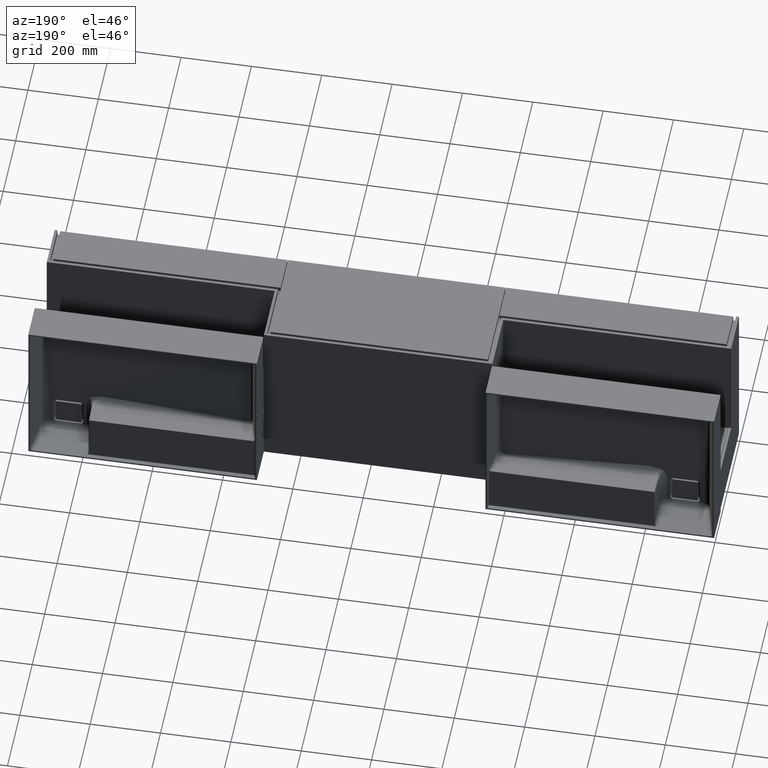
[diagram: clean part render]
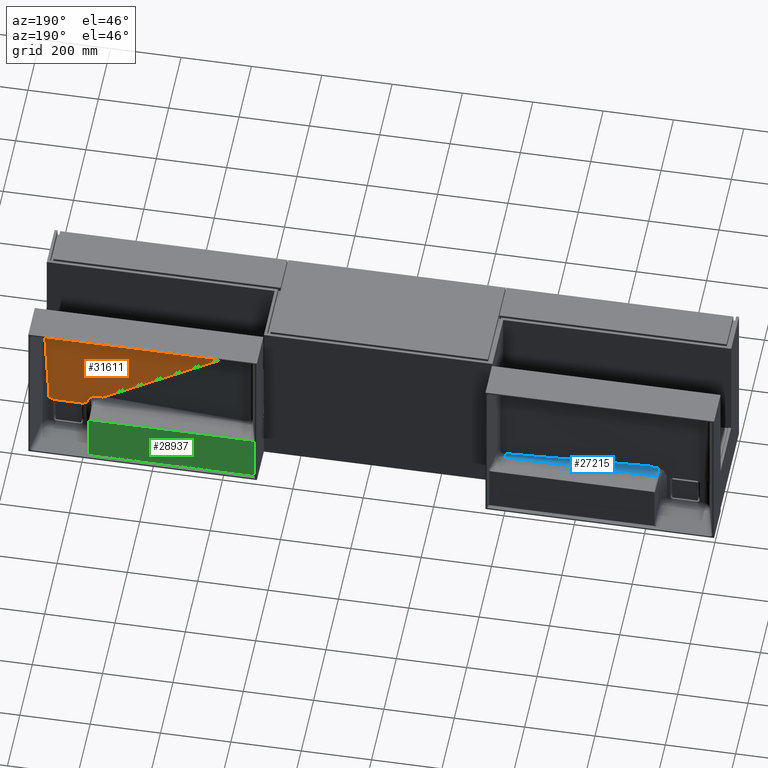
[diagram: same view with three faces highlighted in distinct colors, each labeled with its STEP entity id]
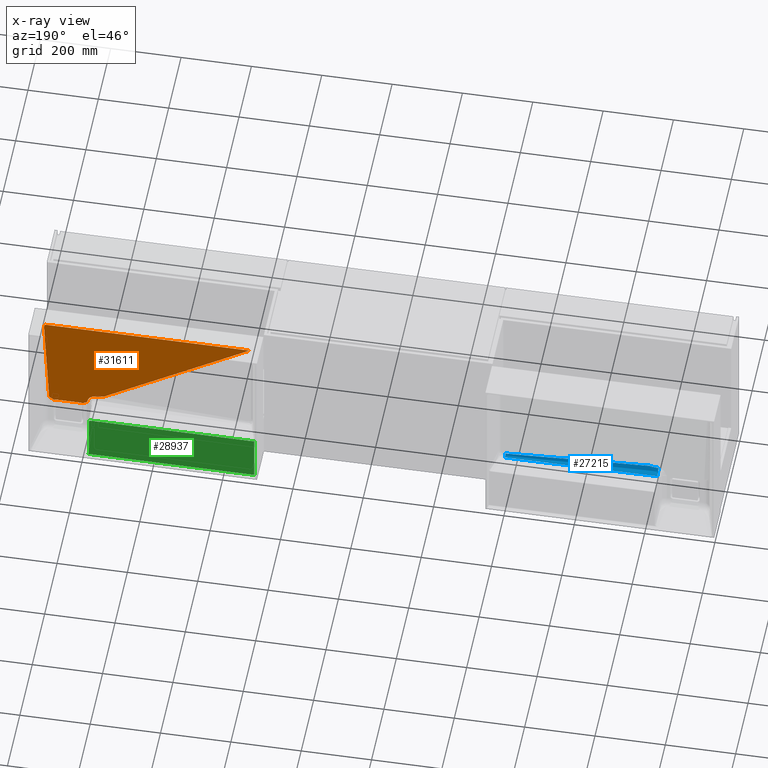
[diagram: x-ray of the same camera — body ghosted, the three highlighted faces saturated]
A machine part, auxiliary view with three faces highlighted in distinct colors.
The next image is the same camera in x-ray (body ghosted, the three faces saturated) — at least one of them is partly hidden behind the body in this view.
Their STEP definitions:

[orange] entity #31611 — the highlighted planar face has unit normal (0, 0.9989, -0.0471).
#67 = EDGE_CURVE ( 'NONE', #32546, #10906, #11994, .T. ) ;
#165 = LINE ( 'NONE', #11169, #16728 ) ;
#211 = VERTEX_POINT ( 'NONE', #19168 ) ;
#622 = VERTEX_POINT ( 'NONE', #16866 ) ;
#641 = ORIENTED_EDGE ( 'NONE', *, *, #14257, .F. ) ;
#1259 = CARTESIAN_POINT ( 'NONE',  ( 1797.965027117435511, 323.4823376982270702, -333.2614559269432561 ) ) ;
#1333 = CARTESIAN_POINT ( 'NONE',  ( 1918.553761002523288, 337.2258089461175814, -41.52988154324056325 ) ) ;
#1390 = DIRECTION ( 'NONE',  ( 1.000000000000000000, 9.757946722184971901E-18, 2.071311613106639097E-16 ) ) ;
#1513 = CARTESIAN_POINT ( 'NONE',  ( 1918.400390947017058, 337.4206142604697334, -37.39476458266908310 ) ) ;
#1569 = CARTESIAN_POINT ( 'NONE',  ( 1780.918442973028732, 324.5750153250745029, -310.0710985464254463 ) ) ;
#1690 = CARTESIAN_POINT ( 'NONE',  ( 1915.666179327739428, 337.6731070166441100, -32.03512086889173816 ) ) ;
#1742 = CARTESIAN_POINT ( 'NONE',  ( 1788.978954743254917, 324.3573774372000003, -314.6875672777780437 ) ) ;
#1772 = CARTESIAN_POINT ( 'NONE',  ( 1758.940962444132083, 324.7265386575339789, -306.8509008232539941 ) ) ;
#1833 = CARTESIAN_POINT ( 'NONE',  ( 1889.112828828983766, 323.0000000000000000, -343.5000000000000000 ) ) ;
#1866 = CARTESIAN_POINT ( 'NONE',  ( 1909.889861883324329, 337.7236905790331321, -30.96138760110958543 ) ) ;
#1921 = CARTESIAN_POINT ( 'NONE',  ( 1793.808610766313677, 324.0734895415783399, -320.7134792406052384 ) ) ;
#1963 = CARTESIAN_POINT ( 'NONE',  ( 1813.866617577748457, 323.0000000000000000, -343.5000000000000000 ) ) ;
#1972 = B_SPLINE_CURVE_WITH_KNOTS ( 'NONE', 3,
 ( #1963, #12992, #23983, #34841, #10290, #21272, #32195, #7583, #18582, #29535, #4850, #15871, #26857, #2159, #13177, #24158 ),
 .UNSPECIFIED., .F., .F.,
 ( 4, 3, 3, 3, 3, 4 ),
 ( 4.440892098536545957E-16, 2.064564616517910577E-05, 4.149602404042847205E-05, 5.110267541765995173E-05, 5.902155138523754716E-05, 6.117800785057030783E-05 ),
 .UNSPECIFIED. ) ;
#1978 = ORIENTED_EDGE ( 'NONE', *, *, #26020, .F. ) ;
#2043 = ORIENTED_EDGE ( 'NONE', *, *, #15710, .F. ) ;
#2090 = CARTESIAN_POINT ( 'NONE',  ( 1907.251403875330880, 337.7249613011945257, -30.93441408255048941 ) ) ;
#2159 = CARTESIAN_POINT ( 'NONE',  ( 1813.921441467915201, 322.9991799397764112, -343.5174073533389674 ) ) ;
#2348 = CARTESIAN_POINT ( 'NONE',  ( 1906.493781632526861, 323.7242482487426969, -328.1264398535575424 ) ) ;
#2397 = EDGE_CURVE ( 'NONE', #20218, #19894, #24029, .T. ) ;
#3324 = VERTEX_POINT ( 'NONE', #20222 ) ;
#3400 = LINE ( 'NONE', #14430, #9749 ) ;
#3428 = CARTESIAN_POINT ( 'NONE',  ( 1815.188754413475408, 323.0293517532739429, -342.8769526607154603 ) ) ;
#3874 = B_SPLINE_CURVE_WITH_KNOTS ( 'NONE', 3,
 ( #6772, #17767, #28732, #4034, #15060, #26028, #1333, #12357, #23336, #34216, #9659, #20644, #31576, #6945, #17941, #28903, #4211, #15235, #26214, #1513, #12541, #23517, #34391, #9826, #20817, #31745, #7120, #18128, #29079, #4391, #15417, #26392, #1690, #12713, #23694, #34562, #10000, #20993, #31925, #7304, #18304, #29256, #4572, #15597, #26567, #1866, #12889, #23877, #34747, #10188, #21176, #32102, #7487, #18484, #29435, #4748, #15772, #26750 ),
 .UNSPECIFIED., .F., .F.,
 ( 4, 2, 2, 2, 2, 2, 2, 2, 2, 2, 2, 2, 2, 2, 2, 2, 2, 2, 2, 2, 2, 2, 2, 2, 2, 2, 2, 2, 4 ),
 ( 0.0000000000000000000, 0.03124999999999999653, 0.04687500000000000000, 0.05468750000000000694, 0.05859375000000000694, 0.06250000000000001388, 0.1250000000000000000, 0.1875000000000000000, 0.2031249999999999445, 0.2187499999999999445, 0.2499999999999999722, 0.3749999999999999445, 0.4375000000000000000, 0.5000000000000000000, 0.5312499999999998890, 0.5624999999999998890, 0.6250000000000000000, 0.7500000000000000000, 0.7812500000000000000, 0.7890625000000000000, 0.7968750000000000000, 0.8125000000000001110, 0.8750000000000001110, 0.9062500000000001110, 0.9218750000000001110, 0.9257812500000001110, 0.9296875000000001110, 0.9375000000000001110, 1.000000000000000000 ),
 .UNSPECIFIED. ) ;
#3962 = CARTESIAN_POINT ( 'NONE',  ( 1797.008663322176517, 323.6403621081881852, -329.9070843073126866 ) ) ;
#3995 = CARTESIAN_POINT ( 'NONE',  ( 1755.770955481895498, 324.7556448546311572, -306.2330658854567105 ) ) ;
#4034 = CARTESIAN_POINT ( 'NONE',  ( 1918.551297990498369, 337.2129434898501472, -41.80297556325307085 ) ) ;
#4134 = CARTESIAN_POINT ( 'NONE',  ( 1800.008530013785503, 323.3087644759445425, -336.9458809527554877 ) ) ;
#4211 = CARTESIAN_POINT ( 'NONE',  ( 1918.471460826505336, 337.3843240377236725, -38.16509426324731891 ) ) ;
#4266 = CARTESIAN_POINT ( 'NONE',  ( 1777.251593850089648, 324.6169723333507022, -309.1766564985796890 ) ) ;
#4315 = DIRECTION ( 'NONE',  ( 1.000000000000000000, 0.0000000000000000000, 0.0000000000000000000 ) ) ;
#4391 = CARTESIAN_POINT ( 'NONE',  ( 1916.468187275119817, 337.6493383360464122, -32.53965676718822664 ) ) ;
#4450 = CARTESIAN_POINT ( 'NONE',  ( 1787.648978590895013, 324.4094675208264675, -313.5844513033470093 ) ) ;
#4540 = CARTESIAN_POINT ( 'NONE',  ( 1889.093363235322386, 322.9999518831746741, -343.5010213720366323 ) ) ;
#4566 = ORIENTED_EDGE ( 'NONE', *, *, #10672, .F. ) ;
#4572 = CARTESIAN_POINT ( 'NONE',  ( 1911.664086501781640, 337.7185813288039640, -31.06984125058045265 ) ) ;
#4624 = CARTESIAN_POINT ( 'NONE',  ( 1793.340956510868637, 324.1112409608070379, -319.9136218570250207 ) ) ;
#4748 = CARTESIAN_POINT ( 'NONE',  ( 1908.283314213188987, 337.7249223621574856, -30.93524063840082761 ) ) ;
#4774 = ORIENTED_EDGE ( 'NONE', *, *, #2397, .F. ) ;
#4808 = CARTESIAN_POINT ( 'NONE',  ( 1796.100611941182024, 323.8190134302277556, -326.1220991987824505 ) ) ;
#4850 = CARTESIAN_POINT ( 'NONE',  ( 1813.917758170202887, 322.9994056883926419, -343.5126154053626237 ) ) ;
#5705 = VERTEX_POINT ( 'NONE', #23726 ) ;
#5755 = ORIENTED_EDGE ( 'NONE', *, *, #24174, .F. ) ;
#6733 = CARTESIAN_POINT ( 'NONE',  ( 1753.156628572261297, 324.7865976977785749, -305.5760323383931905 ) ) ;
#6765 = B_SPLINE_CURVE_WITH_KNOTS ( 'NONE', 3,
 ( #2090, #13114, #24097, #34951, #10406, #21391, #32306 ),
 .UNSPECIFIED., .F., .F.,
 ( 4, 3, 4 ),
 ( -0.8152679471926076449, -0.2530516495166379443, -0.2507651394412833135 ),
 .UNSPECIFIED. ) ;
#6772 = CARTESIAN_POINT ( 'NONE',  ( 1918.541935883497217, 337.1756495435058696, -42.59461120506247056 ) ) ;
#6868 = CARTESIAN_POINT ( 'NONE',  ( 1799.444607723056833, 323.3341654020621831, -336.4066975082351405 ) ) ;
#6945 = CARTESIAN_POINT ( 'NONE',  ( 1918.533830340404620, 337.3336383377531433, -39.24099559737625498 ) ) ;
#7120 = CARTESIAN_POINT ( 'NONE',  ( 1917.078344176790324, 337.6204264664447692, -33.15336673064378203 ) ) ;
#7174 = CARTESIAN_POINT ( 'NONE',  ( 1784.468725406181420, 324.5060581158200534, -311.5310237991028544 ) ) ;
#7273 = CARTESIAN_POINT ( 'NONE',  ( 1889.072487413950512, 322.9997182540301992, -343.5059805993603277 ) ) ;
#7304 = CARTESIAN_POINT ( 'NONE',  ( 1911.981854181594144, 337.7170292202966380, -31.10278773479060277 ) ) ;
#7363 = CARTESIAN_POINT ( 'NONE',  ( 1791.354880991117170, 324.2443063488063899, -317.0916163643000800 ) ) ;
#7388 = VECTOR ( 'NONE', #4315, 1000.000000000000000 ) ;
#7394 = CARTESIAN_POINT ( 'NONE',  ( 1776.018727805431581, 324.6229568114037534, -309.0496244574870843 ) ) ;
#7487 = CARTESIAN_POINT ( 'NONE',  ( 1908.800554331208104, 337.7247032677150287, -30.93989133876175757 ) ) ;
#7540 = CARTESIAN_POINT ( 'NONE',  ( 1794.096907442260090, 324.0485024675449495, -321.2435212629389412 ) ) ;
#7583 = CARTESIAN_POINT ( 'NONE',  ( 1813.910322701778341, 322.9996506961234104, -343.5074146456904600 ) ) ;
#7781 = CARTESIAN_POINT ( 'NONE',  ( 1906.410967357060827, 323.4151811651100843, -334.6869823302012037 ) ) ;
#7846 = CARTESIAN_POINT ( 'NONE',  ( 1335.598309511666457, 337.6956620656200698, -31.55634663279194996 ) ) ;
#8536 = ORIENTED_EDGE ( 'NONE', *, *, #21238, .F. ) ;
#8859 = CARTESIAN_POINT ( 'NONE',  ( 1907.251403875330880, 337.7249613011945257, -30.93441408255048941 ) ) ;
#8951 = VERTEX_POINT ( 'NONE', #23793 ) ;
#9380 = CARTESIAN_POINT ( 'NONE',  ( 1002.726605056209110, 323.0000000000000000, -343.5000000000000000 ) ) ;
#9433 = CARTESIAN_POINT ( 'NONE',  ( 1751.635324151836357, 324.8115746191029984, -305.0458492099913315 ) ) ;
#9578 = CARTESIAN_POINT ( 'NONE',  ( 1798.832162064819840, 323.3810258314262001, -335.4119948899470955 ) ) ;
#9616 = VERTEX_POINT ( 'NONE', #27597 ) ;
#9659 = CARTESIAN_POINT ( 'NONE',  ( 1918.555222908076303, 337.2356290460759283, -41.32143106011609746 ) ) ;
#9749 = VECTOR ( 'NONE', #25406, 1000.000000000000114 ) ;
#9826 = CARTESIAN_POINT ( 'NONE',  ( 1917.661909477306835, 337.5703446206647413, -34.21645009974789531 ) ) ;
#9880 = CARTESIAN_POINT ( 'NONE',  ( 1782.715109627339643, 324.5430820644769483, -310.7455398828510624 ) ) ;
#9970 = CARTESIAN_POINT ( 'NONE',  ( 1889.062860614791816, 322.9994480009252129, -343.5117172405886095 ) ) ;
#10000 = CARTESIAN_POINT ( 'NONE',  ( 1912.445969025394334, 337.7144185549785789, -31.15820412048111265 ) ) ;
#10008 = CARTESIAN_POINT ( 'NONE',  ( 1887.790691993257042, 323.0293517532739429, -342.8769526607154603 ) ) ;
#10058 = CARTESIAN_POINT ( 'NONE',  ( 1789.499671415799185, 324.3348375182867471, -315.1655142757637691 ) ) ;
#10091 = CARTESIAN_POINT ( 'NONE',  ( 1767.458447236063648, 324.6680791695544031, -308.0918157390205465 ) ) ;
#10188 = CARTESIAN_POINT ( 'NONE',  ( 1908.920016622152843, 337.7246380692217258, -30.94127530200776377 ) ) ;
#10245 = CARTESIAN_POINT ( 'NONE',  ( 1794.070620760738848, 324.0508386337016873, -321.1939358508398641 ) ) ;
#10290 = CARTESIAN_POINT ( 'NONE',  ( 1813.894094666420415, 322.9999044965674102, -343.5020272437902236 ) ) ;
#10338 = DIRECTION ( 'NONE',  ( 1.000000000000000000, 0.0000000000000000000, 0.0000000000000000000 ) ) ;
#10370 = VERTEX_POINT ( 'NONE', #30708 ) ;
#10406 = CARTESIAN_POINT ( 'NONE',  ( 1344.272936174369761, 337.7249613011944689, -30.93441408255059599 ) ) ;
#10456 = EDGE_CURVE ( 'NONE', #31799, #21477, #3874, .T. ) ;
#10544 = CARTESIAN_POINT ( 'NONE',  ( 1337.699105935312446, 337.7158296425627100, -31.12825107623095988 ) ) ;
#10664 = CARTESIAN_POINT ( 'NONE',  ( 1918.541935883497217, 337.1756495435058696, -42.59461120506247056 ) ) ;
#10672 = EDGE_CURVE ( 'NONE', #10906, #10370, #27957, .T. ) ;
#10722 = CARTESIAN_POINT ( 'NONE',  ( 1335.384846475662926, 337.6820198651378746, -31.84592854066115564 ) ) ;
#10906 = VERTEX_POINT ( 'NONE', #25379 ) ;
#11169 = CARTESIAN_POINT ( 'NONE',  ( 1743.016040398503719, 325.0718058132474653, -299.5219422870509902 ) ) ;
#11386 = B_SPLINE_CURVE_WITH_KNOTS ( 'NONE', 3,
 ( #17696, #28659, #3962, #14986, #25956, #1259, #12285, #23260, #34141, #9578, #20570, #31501, #6868, #17866, #28829, #4134 ),
 .UNSPECIFIED., .F., .F.,
 ( 4, 2, 2, 2, 2, 2, 2, 4 ),
 ( 0.0000000000000000000, 0.002327619205669986639, 0.004655238411339973278, 0.005819048014175066778, 0.006982857617010161146, 0.008146667219845256380, 0.008728572021262873820, 0.009310476822680489525 ),
 .UNSPECIFIED. ) ;
#11939 = EDGE_LOOP ( 'NONE', ( #21518, #29605, #2043, #12883, #4566, #23687, #26207, #8536, #5755, #30787, #21389, #28474, #4774, #1978, #12823, #17131, #14260, #641 ) ) ;
#11994 = LINE ( 'NONE', #22964, #19259 ) ;
#12144 = CARTESIAN_POINT ( 'NONE',  ( 1750.672703907352570, 324.8349497930412895, -304.5496662463542634 ) ) ;
#12285 = CARTESIAN_POINT ( 'NONE',  ( 1798.090650588392919, 323.4650869982648373, -333.6276351671359635 ) ) ;
#12357 = CARTESIAN_POINT ( 'NONE',  ( 1918.554232795710732, 337.2287208398669236, -41.46807100552397429 ) ) ;
#12541 = CARTESIAN_POINT ( 'NONE',  ( 1918.371306749212408, 337.4320743959908668, -37.15150119470121126 ) ) ;
#12595 = CARTESIAN_POINT ( 'NONE',  ( 1781.820419394163537, 324.5598665957712683, -310.3908971778910200 ) ) ;
#12682 = CARTESIAN_POINT ( 'NONE',  ( 1889.057311611760269, 322.9991196170648777, -343.5186878187532784 ) ) ;
#12713 = CARTESIAN_POINT ( 'NONE',  ( 1914.683035242808501, 337.6928821471071274, -31.61535574263310622 ) ) ;
#12767 = CARTESIAN_POINT ( 'NONE',  ( 1789.154589835223078, 324.3499665057816514, -314.8446081194318253 ) ) ;
#12797 = CARTESIAN_POINT ( 'NONE',  ( 1761.064008319415507, 324.7100343581348625, -307.2012362778858687 ) ) ;
#12814 = VECTOR ( 'NONE', #10338, 1000.000000000000000 ) ;
#12823 = ORIENTED_EDGE ( 'NONE', *, *, #31941, .F. ) ;
#12883 = ORIENTED_EDGE ( 'NONE', *, *, #32866, .F. ) ;
#12889 = CARTESIAN_POINT ( 'NONE',  ( 1909.630033744161892, 337.7240417001082164, -30.95393438188889945 ) ) ;
#12946 = CARTESIAN_POINT ( 'NONE',  ( 1793.920223284073245, 324.0639702423433732, -320.9153348663550673 ) ) ;
#12992 = CARTESIAN_POINT ( 'NONE',  ( 1813.873499459803952, 323.0000000000000000, -343.5000000000000000 ) ) ;
#13114 = CARTESIAN_POINT ( 'NONE',  ( 1719.845971316801297, 337.7249613011945257, -30.93441408255059955 ) ) ;
#13177 = CARTESIAN_POINT ( 'NONE',  ( 1813.921805009517129, 322.9991501576077439, -343.5180395370724113 ) ) ;
#13260 = CARTESIAN_POINT ( 'NONE',  ( 1342.748596124134110, 337.7249613011945257, -30.93441408255059955 ) ) ;
#13305 = CARTESIAN_POINT ( 'NONE',  ( 1813.922134794972635, 322.9991196170648777, -343.5186878187532784 ) ) ;
#13378 = CARTESIAN_POINT ( 'NONE',  ( 1906.535188770260220, 323.8787817905590032, -324.8461686152356265 ) ) ;
#13433 = CARTESIAN_POINT ( 'NONE',  ( 1335.269267041137482, 337.6904979936179529, -31.66596397969345844 ) ) ;
#14257 = EDGE_CURVE ( 'NONE', #622, #35167, #1972, .T. ) ;
#14260 = ORIENTED_EDGE ( 'NONE', *, *, #28502, .F. ) ;
#14430 = CARTESIAN_POINT ( 'NONE',  ( 1640.719486562615657, 315.1961146394702951, -509.1524557350588793 ) ) ;
#14460 = CARTESIAN_POINT ( 'NONE',  ( 1816.569811490956454, 323.0448930965661702, -342.5470577990108723 ) ) ;
#14986 = CARTESIAN_POINT ( 'NONE',  ( 1797.398162651793427, 323.5696781237312507, -331.4074876404578731 ) ) ;
#15019 = CARTESIAN_POINT ( 'NONE',  ( 1756.297888460271906, 324.7503751772955525, -306.3449249084019357 ) ) ;
#15060 = CARTESIAN_POINT ( 'NONE',  ( 1918.552237406985796, 337.2174715863224606, -41.70685801849049312 ) ) ;
#15116 = LINE ( 'NONE', #26087, #21476 ) ;
#15235 = CARTESIAN_POINT ( 'NONE',  ( 1918.449992683475784, 337.3966834261214558, -37.90274250577006399 ) ) ;
#15291 = CARTESIAN_POINT ( 'NONE',  ( 1778.483304739420646, 324.6067101696027066, -309.3991760769907842 ) ) ;
#15417 = CARTESIAN_POINT ( 'NONE',  ( 1916.347413918042321, 337.6536268302083386, -32.44862524167150752 ) ) ;
#15474 = CARTESIAN_POINT ( 'NONE',  ( 1788.383704467648840, 324.3815675999406380, -314.1752336002058996 ) ) ;
#15562 = CARTESIAN_POINT ( 'NONE',  ( 1889.099816841022403, 322.9999873542473097, -343.5002684303901788 ) ) ;
#15597 = CARTESIAN_POINT ( 'NONE',  ( 1911.116366238793034, 337.7209145105940138, -31.02031498573701285 ) ) ;
#15650 = CARTESIAN_POINT ( 'NONE',  ( 1793.501089305568939, 324.0987252844670934, -320.1786996566458470 ) ) ;
#15710 = EDGE_CURVE ( 'NONE', #35274, #20384, #11386, .T. ) ;
#15751 = EDGE_CURVE ( 'NONE', #3324, #622, #18048, .T. ) ;
#15772 = CARTESIAN_POINT ( 'NONE',  ( 1907.811716452081782, 337.7249613012529608, -30.93441408131116788 ) ) ;
#15826 = CARTESIAN_POINT ( 'NONE',  ( 1796.414138589793083, 323.7638814780939356, -327.2851484368540014 ) ) ;
#15871 = CARTESIAN_POINT ( 'NONE',  ( 1813.919620097178267, 322.9993131088632481, -343.5145805836913269 ) ) ;
#16080 = CARTESIAN_POINT ( 'NONE',  ( 1800.008530013785503, 323.3087644759445425, -336.9458809527554877 ) ) ;
#16728 = VECTOR ( 'NONE', #22156, 1000.000000000000114 ) ;
#16866 = CARTESIAN_POINT ( 'NONE',  ( 1813.866617577748457, 323.0000000000000000, -343.5000000000000000 ) ) ;
#17131 = ORIENTED_EDGE ( 'NONE', *, *, #26931, .F. ) ;
#17696 = CARTESIAN_POINT ( 'NONE',  ( 1796.661314733863037, 323.7115601592880125, -328.3957689223036027 ) ) ;
#17728 = CARTESIAN_POINT ( 'NONE',  ( 1754.195135619316716, 324.7731144977070130, -305.8622391571532830 ) ) ;
#17767 = CARTESIAN_POINT ( 'NONE',  ( 1918.545138887779103, 337.1876033160002635, -42.34086942420800170 ) ) ;
#17866 = CARTESIAN_POINT ( 'NONE',  ( 1799.700847622386618, 323.3203450831404666, -336.7000603220987500 ) ) ;
#17941 = CARTESIAN_POINT ( 'NONE',  ( 1918.513969951351328, 337.3551352547292481, -38.78468224533326492 ) ) ;
#18048 = LINE ( 'NONE', #29001, #7388 ) ;
#18128 = CARTESIAN_POINT ( 'NONE',  ( 1916.794859837091508, 337.6354806959269013, -32.83381179515804149 ) ) ;
#18184 = CARTESIAN_POINT ( 'NONE',  ( 1785.575678376035739, 324.4769567877083318, -312.1526379937471347 ) ) ;
#18236 = VERTEX_POINT ( 'NONE', #30775 ) ;
#18273 = CARTESIAN_POINT ( 'NONE',  ( 1889.079090576085719, 322.9998476346299299, -343.5032342476292797 ) ) ;
#18304 = CARTESIAN_POINT ( 'NONE',  ( 1911.929670964552770, 337.7172985778204293, -31.09707010399200655 ) ) ;
#18360 = CARTESIAN_POINT ( 'NONE',  ( 1792.488825966484001, 324.1728390216620141, -318.6085714211701543 ) ) ;
#18462 = CARTESIAN_POINT ( 'NONE',  ( 1889.057311611760269, 322.9991196170648777, -343.5186878187532784 ) ) ;
#18484 = CARTESIAN_POINT ( 'NONE',  ( 1908.737364945573518, 337.7247344144538488, -30.93923018940682823 ) ) ;
#18538 = CARTESIAN_POINT ( 'NONE',  ( 1794.756526708276851, 323.9896845516999520, -322.4920444985859262 ) ) ;
#18582 = CARTESIAN_POINT ( 'NONE',  ( 1813.913180599642828, 322.9995765522121474, -343.5089884926149466 ) ) ;
#18848 = CARTESIAN_POINT ( 'NONE',  ( 1335.269267041137482, 337.6904979936179529, -31.66596397969345844 ) ) ;
#18942 = EDGE_CURVE ( 'NONE', #19894, #9616, #3400, .T. ) ;
#19168 = CARTESIAN_POINT ( 'NONE',  ( 1335.269267041137482, 337.6904979936179529, -31.66596397969345844 ) ) ;
#19259 = VECTOR ( 'NONE', #33855, 1000.000000000000114 ) ;
#19894 = VERTEX_POINT ( 'NONE', #34908 ) ;
#20218 = VERTEX_POINT ( 'NONE', #31358 ) ;
#20222 = CARTESIAN_POINT ( 'NONE',  ( 1809.989723203366339, 323.0000000000000000, -343.5000000000000000 ) ) ;
#20297 = CARTESIAN_POINT ( 'NONE',  ( 1918.541935883497217, 337.1756495435058696, -42.59461120506247056 ) ) ;
#20375 = DIRECTION ( 'NONE',  ( 0.0000000000000000000, 0.9988921681304054889, -0.04705779901076869581 ) ) ;
#20384 = VERTEX_POINT ( 'NONE', #16080 ) ;
#20413 = B_SPLINE_CURVE_WITH_KNOTS ( 'NONE', 3,
 ( #12682, #23660, #34530, #9970, #20960, #31886, #7273, #18273, #29222, #4540, #15562, #26533, #1833 ),
 .UNSPECIFIED., .F., .F.,
 ( 4, 3, 3, 3, 4 ),
 ( 0.0000000000000000000, 8.915617227922920056E-06, 2.010108594511868696E-05, 4.157102085746201023E-05, 6.097989384569850062E-05 ),
 .UNSPECIFIED. ) ;
#20425 = CARTESIAN_POINT ( 'NONE',  ( 1751.885109507924426, 324.8069209751062658, -305.1446317420964078 ) ) ;
#20570 = CARTESIAN_POINT ( 'NONE',  ( 1799.011281870217545, 323.3646822769985079, -335.7589182238186822 ) ) ;
#20644 = CARTESIAN_POINT ( 'NONE',  ( 1918.558497224494431, 337.2631909068123264, -40.73637762779513594 ) ) ;
#20817 = CARTESIAN_POINT ( 'NONE',  ( 1917.530640076710142, 337.5842716480207173, -33.92082219441735447 ) ) ;
#20871 = CARTESIAN_POINT ( 'NONE',  ( 1783.011339523488459, 324.5370999545092445, -310.8721991501494131 ) ) ;
#20960 = CARTESIAN_POINT ( 'NONE',  ( 1889.065688140488874, 322.9995629513521749, -343.5092771969901264 ) ) ;
#20975 = EDGE_CURVE ( 'NONE', #20384, #3324, #165, .T. ) ;
#20993 = CARTESIAN_POINT ( 'NONE',  ( 1912.123156575955591, 337.7162688819984737, -31.11892737555379540 ) ) ;
#20999 = CARTESIAN_POINT ( 'NONE',  ( 1889.057311611760269, 322.9991196170648777, -343.5186878187532784 ) ) ;
#21051 = CARTESIAN_POINT ( 'NONE',  ( 1789.526960147151158, 324.3336191950053831, -315.1913710976098741 ) ) ;
#21081 = CARTESIAN_POINT ( 'NONE',  ( 1771.735516287872542, 324.6443237527144561, -308.5960700885868278 ) ) ;
#21176 = CARTESIAN_POINT ( 'NONE',  ( 1908.885416681382367, 337.7246580537544105, -30.94085109191881955 ) ) ;
#21229 = CARTESIAN_POINT ( 'NONE',  ( 1794.084094304169184, 324.0496422222772139, -321.2193292840379968 ) ) ;
#21238 = EDGE_CURVE ( 'NONE', #5705, #211, #29618, .T. ) ;
#21272 = CARTESIAN_POINT ( 'NONE',  ( 1813.901013522018047, 322.9998379681751999, -343.5034394366965671 ) ) ;
#21389 = ORIENTED_EDGE ( 'NONE', *, *, #25066, .F. ) ;
#21391 = CARTESIAN_POINT ( 'NONE',  ( 1343.510766149251594, 337.7249613011944120, -30.93441408255059244 ) ) ;
#21476 = VECTOR ( 'NONE', #1390, 1000.000000000000000 ) ;
#21477 = VERTEX_POINT ( 'NONE', #8859 ) ;
#21518 = ORIENTED_EDGE ( 'NONE', *, *, #15751, .F. ) ;
#21533 = CARTESIAN_POINT ( 'NONE',  ( 1336.977750193986139, 337.7111388342803480, -31.22782249167887869 ) ) ;
#21706 = CARTESIAN_POINT ( 'NONE',  ( 1335.426944914187288, 337.6804219453647420, -31.87984745698018685 ) ) ;
#21847 =( BOUNDED_CURVE ( )  B_SPLINE_CURVE ( 3, ( #28141, #3428, #14460, #25440 ),
 .UNSPECIFIED., .F., .T. ) 
 B_SPLINE_CURVE_WITH_KNOTS ( ( 4, 4 ),
 ( 5.814230398886809148, 6.283185307179586232 ),
 .UNSPECIFIED. ) 
 CURVE ( )  GEOMETRIC_REPRESENTATION_ITEM ( )  RATIONAL_B_SPLINE_CURVE ( ( 1.000000000000000000, 0.9817572531261220536, 0.9817572531261220536, 1.000000000000000000 ) ) 
 REPRESENTATION_ITEM ( '' )  );
#22156 = DIRECTION ( 'NONE',  ( 0.8356163984689591873, -0.02584948056443473960, -0.5487048741940557806 ) ) ;
#22964 = CARTESIAN_POINT ( 'NONE',  ( 1743.016040398503719, 325.0718058132474653, -299.5219422870509902 ) ) ;
#23001 =( BOUNDED_CURVE ( )  B_SPLINE_CURVE ( 3, ( #23699, #34567, #10008, #20999 ),
 .UNSPECIFIED., .F., .T. ) 
 B_SPLINE_CURVE_WITH_KNOTS ( ( 4, 4 ),
 ( 0.0000000000000000000, 0.4689549082927774171 ),
 .UNSPECIFIED. ) 
 CURVE ( )  GEOMETRIC_REPRESENTATION_ITEM ( )  RATIONAL_B_SPLINE_CURVE ( ( 1.000000000000000000, 0.9817572531261220536, 0.9817572531261220536, 1.000000000000000000 ) ) 
 REPRESENTATION_ITEM ( '' )  );
#23070 = FACE_OUTER_BOUND ( 'NONE', #11939, .T. ) ;
#23120 = CARTESIAN_POINT ( 'NONE',  ( 1750.903433881881256, 324.8278122476279464, -304.7011743568679663 ) ) ;
#23260 = CARTESIAN_POINT ( 'NONE',  ( 1798.362026851982819, 323.4309747735021574, -334.3517326572268757 ) ) ;
#23336 = CARTESIAN_POINT ( 'NONE',  ( 1918.554546497903630, 337.2307365062807776, -41.42528461437967024 ) ) ;
#23517 = CARTESIAN_POINT ( 'NONE',  ( 1918.207474178610937, 337.4871639428827734, -35.98211975118191219 ) ) ;
#23572 = CARTESIAN_POINT ( 'NONE',  ( 1782.119805633271653, 324.5545047444864508, -310.5040692008880683 ) ) ;
#23660 = CARTESIAN_POINT ( 'NONE',  ( 1889.058657905993414, 322.9992442937479495, -343.5160413166884155 ) ) ;
#23687 = ORIENTED_EDGE ( 'NONE', *, *, #67, .F. ) ;
#23694 = CARTESIAN_POINT ( 'NONE',  ( 1913.886969419783327, 337.7033852451376106, -31.39240731358752257 ) ) ;
#23699 = CARTESIAN_POINT ( 'NONE',  ( 1884.989723203366339, 323.0448930965661702, -342.5470577990108723 ) ) ;
#23726 = CARTESIAN_POINT ( 'NONE',  ( 1342.748596124134110, 337.7249613011945257, -30.93441408255059955 ) ) ;
#23748 = CARTESIAN_POINT ( 'NONE',  ( 1789.356582927754744, 324.3411750285285393, -315.0310454186692937 ) ) ;
#23780 = CARTESIAN_POINT ( 'NONE',  ( 1762.127666965743174, 324.7024201626881563, -307.3628622008577054 ) ) ;
#23793 = CARTESIAN_POINT ( 'NONE',  ( 1884.989723203366339, 323.0448930965661702, -342.5470577990108723 ) ) ;
#23877 = CARTESIAN_POINT ( 'NONE',  ( 1909.228302570850246, 337.7244269008043602, -30.94575775725785149 ) ) ;
#23938 = CARTESIAN_POINT ( 'NONE',  ( 1793.975500944219675, 324.0592029971686543, -321.0164471416222796 ) ) ;
#23983 = CARTESIAN_POINT ( 'NONE',  ( 1813.880402929523143, 322.9999859263438680, -343.5002987403825614 ) ) ;
#24029 = LINE ( 'NONE', #34887, #12814 ) ;
#24097 = CARTESIAN_POINT ( 'NONE',  ( 1532.440538758144612, 337.7249613011945257, -30.93441408255059955 ) ) ;
#24157 = CARTESIAN_POINT ( 'NONE',  ( 1335.472280760403237, 337.6790194979284934, -31.90961709749995379 ) ) ;
#24158 = CARTESIAN_POINT ( 'NONE',  ( 1813.922134794972635, 322.9991196170648777, -343.5186878187532784 ) ) ;
#24174 = EDGE_CURVE ( 'NONE', #21477, #5705, #6765, .T. ) ;
#24240 = CARTESIAN_POINT ( 'NONE',  ( 1341.305884641666353, 337.7249613013771636, -30.93441407867114634 ) ) ;
#24357 = CARTESIAN_POINT ( 'NONE',  ( 1907.723264519358963, 328.3127408494356132, -230.7268712654125693 ) ) ;
#24412 = CARTESIAN_POINT ( 'NONE',  ( 1335.285139764181622, 337.6880379785537798, -31.71818252439109642 ) ) ;
#24539 = B_SPLINE_CURVE_WITH_KNOTS ( 'NONE', 3,
 ( #28954, #4266, #15291, #26270, #1569, #12595, #23572, #34441, #9880, #20871, #31800, #7174, #18184, #29132, #4450, #15474, #26447, #1742, #12767, #23748, #34615, #10058, #21051, #31979, #7363, #18360, #29309, #4624, #15650, #26624, #1921, #12946, #23938, #34799, #10245, #21229, #32150, #7540, #18538, #29489, #4808, #15826, #26809 ),
 .UNSPECIFIED., .F., .F.,
 ( 4, 2, 2, 2, 2, 2, 2, 2, 2, 1, 1, 2, 2, 2, 2, 2, 2, 1, 1, 1, 2, 2, 2, 4 ),
 ( 0.0000000000000000000, 0.1249999999999296119, 0.1874999999999050482, 0.2187499999998936406, 0.2343749999998889499, 0.2499999999998842592, 0.3749999999999152900, 0.4374999999999399369, 0.4687499999999539813, 0.4843749999999525935, 0.4921874999999501510, 0.4960937499999490408, 0.4999999999999479305, 0.6250000000003597123, 0.6875000000005745404, 0.7187500000006796785, 0.7343750000007379652, 0.7421875000007727152, 0.7460937500007925882, 0.7480468750008024692, 0.7490234375008097967, 0.7500000000008171241, 0.8750000000004085621, 1.000000000000000000 ),
 .UNSPECIFIED. ) ;
#25066 = EDGE_CURVE ( 'NONE', #9616, #31799, #34519, .T. ) ;
#25379 = CARTESIAN_POINT ( 'NONE',  ( 1750.672703907352570, 324.8349497930412895, -304.5496662463542634 ) ) ;
#25406 = DIRECTION ( 'NONE',  ( 0.8356163984689579660, 0.02584948056443482980, 0.5487048741940574459 ) ) ;
#25440 = CARTESIAN_POINT ( 'NONE',  ( 1817.989723203366339, 323.0448930965661702, -342.5470577990108723 ) ) ;
#25956 = CARTESIAN_POINT ( 'NONE',  ( 1797.608516856035976, 323.5344834360791992, -332.1545624844752638 ) ) ;
#25991 = CARTESIAN_POINT ( 'NONE',  ( 1757.881509471888648, 324.7354091234105908, -306.6626081474763623 ) ) ;
#26020 = EDGE_CURVE ( 'NONE', #29712, #20218, #20413, .T. ) ;
#26028 = CARTESIAN_POINT ( 'NONE',  ( 1918.553409454663552, 337.2237845743520666, -41.57285272217691841 ) ) ;
#26087 = CARTESIAN_POINT ( 'NONE',  ( 1884.989723203366339, 323.0448930965661702, -342.5470577990108723 ) ) ;
#26207 = ORIENTED_EDGE ( 'NONE', *, *, #31125, .F. ) ;
#26214 = CARTESIAN_POINT ( 'NONE',  ( 1918.438305101559536, 337.4027503104503580, -37.77396123319908838 ) ) ;
#26270 = CARTESIAN_POINT ( 'NONE',  ( 1780.312056362050498, 324.5838626151304425, -309.8841741496217423 ) ) ;
#26392 = CARTESIAN_POINT ( 'NONE',  ( 1915.959179525441641, 337.6658314866651835, -32.18955796683656700 ) ) ;
#26447 = CARTESIAN_POINT ( 'NONE',  ( 1788.624417612935758, 324.3720283612535127, -314.3771978457709224 ) ) ;
#26533 = CARTESIAN_POINT ( 'NONE',  ( 1889.106331352100597, 323.0000000000000000, -343.5000000000000000 ) ) ;
#26567 = CARTESIAN_POINT ( 'NONE',  ( 1910.645136854271414, 337.7222999921850715, -30.99090547786567740 ) ) ;
#26624 = CARTESIAN_POINT ( 'NONE',  ( 1793.732792493560055, 324.0798154879924482, -320.5793987969469185 ) ) ;
#26750 = CARTESIAN_POINT ( 'NONE',  ( 1907.251403875330880, 337.7249613011945257, -30.93441408255048941 ) ) ;
#26809 = CARTESIAN_POINT ( 'NONE',  ( 1796.661314733863037, 323.7115601592880125, -328.3957689223036027 ) ) ;
#26857 = CARTESIAN_POINT ( 'NONE',  ( 1813.921047476732156, 322.9992087463477333, -343.5167958785331166 ) ) ;
#26931 = EDGE_CURVE ( 'NONE', #18236, #8951, #15116, .T. ) ;
#27058 = CARTESIAN_POINT ( 'NONE',  ( 1906.452374494793730, 323.5697147069263337, -331.4067110918794015 ) ) ;
#27597 = CARTESIAN_POINT ( 'NONE',  ( 1906.410967357060827, 323.4151811651100843, -334.6869823302012037 ) ) ;
#27957 = B_SPLINE_CURVE_WITH_KNOTS ( 'NONE', 3,
 ( #12144, #23120, #34007, #9433, #20425, #31363, #6733, #17728, #28692, #3995, #15019, #25991, #1772, #12797, #23780, #34647, #10091, #21081, #32012, #7394 ),
 .UNSPECIFIED., .F., .F.,
 ( 4, 2, 2, 2, 2, 2, 2, 2, 2, 4 ),
 ( 0.0000000000000000000, 0.0008055719474764946571, 0.001611143894952989314, 0.003222287789905352393, 0.004833431684857715689, 0.006444575579810078551, 0.009666863369714806878, 0.01288915115961953607, 0.01933372673942901354, 0.02577830231923849275 ),
 .UNSPECIFIED. ) ;
#28141 = CARTESIAN_POINT ( 'NONE',  ( 1813.922134794972635, 322.9991196170648777, -343.5186878187532784 ) ) ;
#28474 = ORIENTED_EDGE ( 'NONE', *, *, #18942, .F. ) ;
#28489 = B_SPLINE_CURVE_WITH_KNOTS ( 'NONE', 3,
 ( #13433, #24412, #35258, #10722, #21706, #32611 ),
 .UNSPECIFIED., .F., .F.,
 ( 4, 2, 4 ),
 ( 0.0000000000000000000, 0.0001612486844205109461, 0.0003224973688410218923 ),
 .UNSPECIFIED. ) ;
#28502 = EDGE_CURVE ( 'NONE', #35167, #18236, #21847, .T. ) ;
#28659 = CARTESIAN_POINT ( 'NONE',  ( 1796.829789822259272, 323.6758977246931295, -329.1527725935776516 ) ) ;
#28692 = CARTESIAN_POINT ( 'NONE',  ( 1754.719870846286540, 324.7670150134592859, -305.9917124256151055 ) ) ;
#28732 = CARTESIAN_POINT ( 'NONE',  ( 1918.548003380773935, 337.1984588510176195, -42.11043984318552447 ) ) ;
#28829 = CARTESIAN_POINT ( 'NONE',  ( 1799.843758482588328, 323.3138616215977663, -336.8376842461541969 ) ) ;
#28903 = CARTESIAN_POINT ( 'NONE',  ( 1918.477960217883037, 337.3801032065616710, -38.25468951163157527 ) ) ;
#28954 = CARTESIAN_POINT ( 'NONE',  ( 1776.018727805431581, 324.6229568114037534, -309.0496244574870843 ) ) ;
#29001 = CARTESIAN_POINT ( 'NONE',  ( 1002.726605056209110, 323.0000000000000000, -343.5000000000000000 ) ) ;
#29079 = CARTESIAN_POINT ( 'NONE',  ( 1916.691960707781845, 337.6402668471724837, -32.73221654218820476 ) ) ;
#29132 = CARTESIAN_POINT ( 'NONE',  ( 1787.142391501275142, 324.4271084074842975, -313.2107265413504820 ) ) ;
#29222 = CARTESIAN_POINT ( 'NONE',  ( 1889.086258843087990, 322.9999128351719264, -343.5018502408945551 ) ) ;
#29256 = CARTESIAN_POINT ( 'NONE',  ( 1911.771565225805034, 337.7180853137620034, -31.08037012254429854 ) ) ;
#29309 = CARTESIAN_POINT ( 'NONE',  ( 1792.843399938056791, 324.1484618988222906, -319.1251760306463439 ) ) ;
#29435 = CARTESIAN_POINT ( 'NONE',  ( 1908.693482454726109, 337.7247542765030630, -30.93880857926125572 ) ) ;
#29489 = CARTESIAN_POINT ( 'NONE',  ( 1795.271757817455864, 323.9319172379680367, -323.7257539271512314 ) ) ;
#29535 = CARTESIAN_POINT ( 'NONE',  ( 1813.915691878406960, 322.9994828154415245, -343.5109782356113897 ) ) ;
#29605 = ORIENTED_EDGE ( 'NONE', *, *, #20975, .F. ) ;
#29618 = B_SPLINE_CURVE_WITH_KNOTS ( 'NONE', 3,
 ( #13260, #24240, #35092, #10544, #21533, #32448, #7846, #18848 ),
 .UNSPECIFIED., .F., .F.,
 ( 4, 2, 2, 4 ),
 ( 0.0000000000000000000, 0.5786795044807507837, 0.8680192567211223453, 1.000000000000000000 ),
 .UNSPECIFIED. ) ;
#29712 = VERTEX_POINT ( 'NONE', #18462 ) ;
#30708 = CARTESIAN_POINT ( 'NONE',  ( 1776.018727805431581, 324.6229568114037534, -309.0496244574870843 ) ) ;
#30775 = CARTESIAN_POINT ( 'NONE',  ( 1817.989723203366339, 323.0448930965661702, -342.5470577990108723 ) ) ;
#30787 = ORIENTED_EDGE ( 'NONE', *, *, #10456, .F. ) ;
#31125 = EDGE_CURVE ( 'NONE', #211, #32546, #28489, .T. ) ;
#31310 = DIRECTION ( 'NONE',  ( 0.0000000000000000000, 0.04705779901076868887, 0.9988921681304053779 ) ) ;
#31358 = CARTESIAN_POINT ( 'NONE',  ( 1889.112828828983766, 323.0000000000000000, -343.5000000000000000 ) ) ;
#31363 = CARTESIAN_POINT ( 'NONE',  ( 1752.642030155777775, 324.7939460989395570, -305.4200484096360242 ) ) ;
#31409 = AXIS2_PLACEMENT_3D ( 'NONE', #9380, #20375, #31310 ) ;
#31501 = CARTESIAN_POINT ( 'NONE',  ( 1799.330374610589843, 323.3415801710639812, -336.2493047945956732 ) ) ;
#31576 = CARTESIAN_POINT ( 'NONE',  ( 1918.556118801700450, 337.2876652052290751, -40.21686363600196756 ) ) ;
#31611 = ADVANCED_FACE ( 'NONE', ( #23070 ), #33956, .T. ) ;
#31745 = CARTESIAN_POINT ( 'NONE',  ( 1917.237327374974711, 337.6093991264167471, -33.38744320300187240 ) ) ;
#31799 = VERTEX_POINT ( 'NONE', #20297 ) ;
#31800 = CARTESIAN_POINT ( 'NONE',  ( 1783.160959075806886, 324.5339905890010641, -310.9381034058065438 ) ) ;
#31886 = CARTESIAN_POINT ( 'NONE',  ( 1889.069037919817447, 322.9996506655611483, -343.5074152944336561 ) ) ;
#31925 = CARTESIAN_POINT ( 'NONE',  ( 1912.085181230051830, 337.7164765821931383, -31.11451853999271933 ) ) ;
#31941 = EDGE_CURVE ( 'NONE', #8951, #29712, #23001, .T. ) ;
#31979 = CARTESIAN_POINT ( 'NONE',  ( 1790.505412189291292, 324.2897013818686673, -316.1236110345764132 ) ) ;
#32012 = CARTESIAN_POINT ( 'NONE',  ( 1773.876548386070226, 324.6333546551163636, -308.8289102535022153 ) ) ;
#32102 = CARTESIAN_POINT ( 'NONE',  ( 1908.815967826766382, 337.7246956419169805, -30.94005321097261785 ) ) ;
#32150 = CARTESIAN_POINT ( 'NONE',  ( 1794.093065734014999, 324.0488444738426210, -321.2362618250585911 ) ) ;
#32195 = CARTESIAN_POINT ( 'NONE',  ( 1813.907375354963960, 322.9997099876721336, -343.5061560686872895 ) ) ;
#32306 = CARTESIAN_POINT ( 'NONE',  ( 1342.748596124134110, 337.7249613011945257, -30.93441408255059955 ) ) ;
#32448 = CARTESIAN_POINT ( 'NONE',  ( 1335.927351982215669, 337.6998420691304545, -31.46761802973441746 ) ) ;
#32546 = VERTEX_POINT ( 'NONE', #24157 ) ;
#32611 = CARTESIAN_POINT ( 'NONE',  ( 1335.472280760403237, 337.6790194979284934, -31.90961709749995379 ) ) ;
#32834 = CARTESIAN_POINT ( 'NONE',  ( 1796.661314733863037, 323.7115601592880125, -328.3957689223036027 ) ) ;
#32866 = EDGE_CURVE ( 'NONE', #10370, #35274, #24539, .T. ) ;
#33855 = DIRECTION ( 'NONE',  ( 0.8356163984689591873, -0.02584948056443473960, -0.5487048741940557806 ) ) ;
#33956 = PLANE ( 'NONE',  #31409 ) ;
#34007 = CARTESIAN_POINT ( 'NONE',  ( 1751.144738645146617, 324.8220531439235970, -304.8234223945266308 ) ) ;
#34141 = CARTESIAN_POINT ( 'NONE',  ( 1798.507514801908201, 323.4141081283004837, -334.7097595974758519 ) ) ;
#34216 = CARTESIAN_POINT ( 'NONE',  ( 1918.555010081940964, 337.2340020232923621, -41.35596774371630602 ) ) ;
#34391 = CARTESIAN_POINT ( 'NONE',  ( 1918.018556671689794, 337.5240812546475695, -35.19847890171810434 ) ) ;
#34441 = CARTESIAN_POINT ( 'NONE',  ( 1782.566572927037441, 324.5459959537297436, -310.6839114948327278 ) ) ;
#34519 = B_SPLINE_CURVE_WITH_KNOTS ( 'NONE', 3,
 ( #7781, #27058, #2348, #13378, #24357, #35202, #10664 ),
 .UNSPECIFIED., .F., .F.,
 ( 4, 3, 4 ),
 ( 0.1670895822075201265, 0.1769420931094206617, 0.4596356071045462066 ),
 .UNSPECIFIED. ) ;
#34530 = CARTESIAN_POINT ( 'NONE',  ( 1889.060611746481982, 322.9993565752760105, -343.5136579255945435 ) ) ;
#34562 = CARTESIAN_POINT ( 'NONE',  ( 1912.694307993047005, 337.7127402909738976, -31.19382849743070807 ) ) ;
#34567 = CARTESIAN_POINT ( 'NONE',  ( 1886.409634915775996, 323.0448930965661702, -342.5470577990108723 ) ) ;
#34615 = CARTESIAN_POINT ( 'NONE',  ( 1789.442520684259762, 324.3373765755657132, -315.1116353831641845 ) ) ;
#34647 = CARTESIAN_POINT ( 'NONE',  ( 1765.322834579598748, 324.6808296650963257, -307.8211619812082063 ) ) ;
#34747 = CARTESIAN_POINT ( 'NONE',  ( 1909.092393575378082, 337.7245318965844376, -30.94352902015997486 ) ) ;
#34799 = CARTESIAN_POINT ( 'NONE',  ( 1794.039067603199101, 324.0536287706747203, -321.1347222975746831 ) ) ;
#34841 = CARTESIAN_POINT ( 'NONE',  ( 1813.887230499255793, 322.9999453202848372, -343.5011606819782060 ) ) ;
#34887 = CARTESIAN_POINT ( 'NONE',  ( 1002.726605056209110, 323.0000000000000000, -343.5000000000000000 ) ) ;
#34908 = CARTESIAN_POINT ( 'NONE',  ( 1892.989723203366339, 323.0000000000000000, -343.5000000000000000 ) ) ;
#34951 = CARTESIAN_POINT ( 'NONE',  ( 1345.035106199488155, 337.7249613011945257, -30.93441408255059955 ) ) ;
#35092 = CARTESIAN_POINT ( 'NONE',  ( 1339.863173158990321, 337.7251631869204971, -30.93012867025501933 ) ) ;
#35167 = VERTEX_POINT ( 'NONE', #13305 ) ;
#35202 = CARTESIAN_POINT ( 'NONE',  ( 1917.353860134398701, 332.7416904846292027, -136.7139085548855348 ) ) ;
#35258 = CARTESIAN_POINT ( 'NONE',  ( 1335.313552879983718, 337.6858300883330344, -31.76504923503394195 ) ) ;
#35274 = VERTEX_POINT ( 'NONE', #32834 ) ;

[blue] entity #27215 — the highlighted face is a freeform B-spline surface patch.
#167 = CARTESIAN_POINT ( 'NONE',  ( 606.9240862386012623, 337.6451574235028943, -317.5491274639953190 ) ) ;
#175 = CARTESIAN_POINT ( 'NONE',  ( 199.3272960926469466, 324.8349497930412326, -304.5496662463542066 ) ) ;
#532 = VERTEX_POINT ( 'NONE', #4145 ) ;
#658 = CARTESIAN_POINT ( 'NONE',  ( 318.3003675270152257, 328.5153372332215440, -323.0495504626818501 ) ) ;
#921 = CARTESIAN_POINT ( 'NONE',  ( 317.7278697431761429, 347.0093540719751672, -323.5338333371206545 ) ) ;
#1045 = CARTESIAN_POINT ( 'NONE',  ( 193.7021115397276958, 324.7503751772956662, -306.3449249084015946 ) ) ;
#2843 = CARTESIAN_POINT ( 'NONE',  ( 606.8344669809555398, 340.4306366061871927, -321.8099686274451869 ) ) ;
#2850 = CARTESIAN_POINT ( 'NONE',  ( 606.9319754812725023, 337.4440480074060815, -315.4900018526547001 ) ) ;
#3189 =( BOUNDED_CURVE ( )  B_SPLINE_CURVE ( 2, ( #12622, #23598, #34464 ),
 .UNSPECIFIED., .F., .T. ) 
 B_SPLINE_CURVE_WITH_KNOTS ( ( 3, 3 ),
 ( 0.0000000000000000000, 1.000000000000000000 ),
 .UNSPECIFIED. ) 
 CURVE ( )  GEOMETRIC_REPRESENTATION_ITEM ( )  RATIONAL_B_SPLINE_CURVE ( ( 1.000000000000000000, 0.7641457412185792553, 0.9204434452545313672 ) ) 
 REPRESENTATION_ITEM ( '' )  );
#3314 = EDGE_CURVE ( 'NONE', #532, #21955, #28298, .T. ) ;
#3345 = CARTESIAN_POINT ( 'NONE',  ( 174.0026961197891353, 324.0515427703932119, -304.4234434570519170 ) ) ;
#3733 = CARTESIAN_POINT ( 'NONE',  ( 195.8048643806831137, 324.7731144977070699, -305.8622391571529988 ) ) ;
#4145 = CARTESIAN_POINT ( 'NONE',  ( 173.4152192562204959, 342.5450962275781990, -323.4169326313427177 ) ) ;
#5566 = CARTESIAN_POINT ( 'NONE',  ( 606.7164674865447296, 344.2019001532993343, -323.4603175689986188 ) ) ;
#6074 = CARTESIAN_POINT ( 'NONE',  ( 606.9319754812725023, 337.4440480074060815, -315.4900018526547001 ) ) ;
#6466 = CARTESIAN_POINT ( 'NONE',  ( 198.1148904920748635, 324.8069209751064363, -305.1446317420958394 ) ) ;
#6647 = CARTESIAN_POINT ( 'NONE',  ( 178.2644837121265482, 324.6443237527143992, -308.5960700885867141 ) ) ;
#6812 = VERTEX_POINT ( 'NONE', #25119 ) ;
#8965 = CARTESIAN_POINT ( 'NONE',  ( 317.7278697431761429, 347.0093540719751672, -323.5338333371206545 ) ) ;
#8991 = ORIENTED_EDGE ( 'NONE', *, *, #21979, .F. ) ;
#9178 = CARTESIAN_POINT ( 'NONE',  ( 199.0965661181187158, 324.8278122476277758, -304.7011743568679094 ) ) ;
#9350 = CARTESIAN_POINT ( 'NONE',  ( 187.8723330342560018, 324.7024201626880426, -307.3628622008567959 ) ) ;
#10375 = CARTESIAN_POINT ( 'NONE',  ( 199.3272960926469466, 324.8349497930412326, -304.5496662463542066 ) ) ;
#11171 = CARTESIAN_POINT ( 'NONE',  ( 606.9311421262176509, 337.4440222278793726, -316.5197541206924257 ) ) ;
#11672 = CARTESIAN_POINT ( 'NONE',  ( 173.9877170403044602, 324.0510793981750908, -322.9326497571487948 ) ) ;
#11943 = CARTESIAN_POINT ( 'NONE',  ( 462.3719663152674570, 340.7665495266904259, -323.3703597469259989 ) ) ;
#12068 = CARTESIAN_POINT ( 'NONE',  ( 192.1184905281106978, 324.7354091234107045, -306.6626081474760781 ) ) ;
#12622 = CARTESIAN_POINT ( 'NONE',  ( 173.4152192562204959, 342.5450962275781990, -323.4169326313427177 ) ) ;
#13873 = CARTESIAN_POINT ( 'NONE',  ( 606.8800961171950803, 338.9942483443089714, -320.3347505222957921 ) ) ;
#13880 = CARTESIAN_POINT ( 'NONE',  ( 471.0608868346715212, 333.2409267287021066, -315.3799392485048543 ) ) ;
#14381 = CARTESIAN_POINT ( 'NONE',  ( 606.9256685004368137, 337.4438529033142800, -323.2833518737481882 ) ) ;
#14412 = CARTESIAN_POINT ( 'NONE',  ( 606.6846168019387733, 345.2308073616522961, -323.4872604524569510 ) ) ;
#14769 = CARTESIAN_POINT ( 'NONE',  ( 195.2801291537134034, 324.7670150134596270, -305.9917124256153329 ) ) ;
#16575 = CARTESIAN_POINT ( 'NONE',  ( 606.7483064508007828, 343.1786398577673367, -323.2321963724519946 ) ) ;
#17077 = CARTESIAN_POINT ( 'NONE',  ( 462.6193249945617367, 332.9797901723597420, -315.3731011471216448 ) ) ;
#17464 = CARTESIAN_POINT ( 'NONE',  ( 197.3579698442215715, 324.7939460989397844, -305.4200484096356263 ) ) ;
#17646 = CARTESIAN_POINT ( 'NONE',  ( 176.1234516139296886, 324.6333546551163067, -308.8289102535021584 ) ) ;
#17902 = VERTEX_POINT ( 'NONE', #33725 ) ;
#19734 = EDGE_LOOP ( 'NONE', ( #8991, #21762, #21980, #24111, #25338 ) ) ;
#19787 = FACE_OUTER_BOUND ( 'NONE', #19734, .T. ) ;
#19963 = CARTESIAN_POINT ( 'NONE',  ( 173.4152192564653490, 342.5450962369287140, -323.4169326315874855 ) ) ;
#20169 = CARTESIAN_POINT ( 'NONE',  ( 198.8552613548534964, 324.8220531439237675, -304.8234223945275403 ) ) ;
#20346 = CARTESIAN_POINT ( 'NONE',  ( 184.6771654203994615, 324.6808296650962689, -307.8211619812075241 ) ) ;
#21762 = ORIENTED_EDGE ( 'NONE', *, *, #21841, .F. ) ;
#21841 = EDGE_CURVE ( 'NONE', #17902, #32032, #28726, .T. ) ;
#21955 = VERTEX_POINT ( 'NONE', #14412 ) ;
#21979 = EDGE_CURVE ( 'NONE', #32032, #6812, #23570, .T. ) ;
#21980 = ORIENTED_EDGE ( 'NONE', *, *, #34737, .F. ) ;
#22158 = CARTESIAN_POINT ( 'NONE',  ( 606.9319754812725023, 337.4440480074060815, -315.4900018526547001 ) ) ;
#22652 = CARTESIAN_POINT ( 'NONE',  ( 606.6846168019782226, 345.2308073617368791, -323.4872604524591679 ) ) ;
#22916 = CARTESIAN_POINT ( 'NONE',  ( 606.6846168019387733, 345.2308073616522961, -323.4872604524569510 ) ) ;
#23040 = CARTESIAN_POINT ( 'NONE',  ( 191.0590375558671496, 324.7265386575338653, -306.8509008232531983 ) ) ;
#23570 = B_SPLINE_CURVE_WITH_KNOTS ( 'NONE', 3,
 ( #33754, #9178, #20169, #31101, #6466, #17464, #28436, #3733, #14769, #25744, #1045, #12068, #23040, #33927, #9350, #20346, #31278, #6647, #17646, #28614 ),
 .UNSPECIFIED., .F., .F.,
 ( 4, 2, 2, 2, 2, 2, 2, 2, 2, 4 ),
 ( 0.0000000000000000000, 0.0008055719474761932489, 0.001611143894952386498, 0.003222287789904794246, 0.004833431684857202211, 0.006444575579809610176, 0.009666863369714459933, 0.01288915115961930882, 0.01933372673942890252, 0.02577830231923849275 ),
 .UNSPECIFIED. ) ;
#23573 = B_SPLINE_CURVE_WITH_KNOTS ( 'NONE', 3,
 ( #30241, #5566, #16575, #27564, #2843, #13873, #24856, #167, #11171, #22158 ),
 .UNSPECIFIED., .F., .F.,
 ( 4, 2, 2, 2, 4 ),
 ( 0.0000000000000000000, 0.2500000000000000000, 0.5000000000000000000, 0.7500000000000000000, 1.000000000000000000 ),
 .UNSPECIFIED. ) ;
#23598 = CARTESIAN_POINT ( 'NONE',  ( 173.8613598786187140, 328.1329318382710198, -323.0395368250020169 ) ) ;
#24111 = ORIENTED_EDGE ( 'NONE', *, *, #3314, .F. ) ;
#24856 = CARTESIAN_POINT ( 'NONE',  ( 606.8985585372915921, 338.4204131196938761, -319.4569766867287512 ) ) ;
#24863 = CARTESIAN_POINT ( 'NONE',  ( 335.1974854116677989, 329.0380432513831579, -305.7710013909584177 ) ) ;
#25119 = CARTESIAN_POINT ( 'NONE',  ( 173.9812721945680494, 324.6229568114036965, -309.0496244574870275 ) ) ;
#25338 = ORIENTED_EDGE ( 'NONE', *, *, #33601, .T. ) ;
#25354 = CARTESIAN_POINT ( 'NONE',  ( 462.6130180137261050, 332.9795950682678836, -323.1664511682150192 ) ) ;
#25618 = CARTESIAN_POINT ( 'NONE',  ( 173.4152192562204959, 342.5450962275781990, -323.4169326313427177 ) ) ;
#25744 = CARTESIAN_POINT ( 'NONE',  ( 194.2290445181042173, 324.7556448546313845, -306.2330658854566536 ) ) ;
#27215 = ADVANCED_FACE ( 'NONE', ( #19787 ), #31674, .T. ) ;
#27564 = CARTESIAN_POINT ( 'NONE',  ( 606.8073170552664806, 341.2926610861864560, -322.4068700512897294 ) ) ;
#28060 = CARTESIAN_POINT ( 'NONE',  ( 318.3153466064999861, 328.5158006054395514, -304.5403441625850860 ) ) ;
#28298 = B_SPLINE_CURVE_WITH_KNOTS ( 'NONE', 3,
 ( #25618, #921, #11943, #22916 ),
 .UNSPECIFIED., .F., .F.,
 ( 4, 4 ),
 ( -0.4346882425457793686, -0.001543048426497328762 ),
 .UNSPECIFIED. ) ;
#28436 = CARTESIAN_POINT ( 'NONE',  ( 196.8433714277378215, 324.7865976977785749, -305.5760323383931336 ) ) ;
#28614 = CARTESIAN_POINT ( 'NONE',  ( 173.9812721945680494, 324.6229568114036965, -309.0496244574870275 ) ) ;
#28726 = B_SPLINE_CURVE_WITH_KNOTS ( 'NONE', 3,
 ( #2850, #13880, #24863, #175 ),
 .UNSPECIFIED., .F., .F.,
 ( 4, 4 ),
 ( -0.4346882425457793686, -0.02687985659662373017 ),
 .UNSPECIFIED. ) ;
#30241 = CARTESIAN_POINT ( 'NONE',  ( 606.6846168019387733, 345.2308073616522961, -323.4872604524569510 ) ) ;
#31101 = CARTESIAN_POINT ( 'NONE',  ( 198.3646758481636141, 324.8115746191032827, -305.0458492099920136 ) ) ;
#31278 = CARTESIAN_POINT ( 'NONE',  ( 182.5415527639358686, 324.6680791695543462, -308.0918157390203760 ) ) ;
#31674 =( BOUNDED_SURFACE ( )  B_SPLINE_SURFACE ( 2, 3, ( 
 ( #6074, #17077, #28060, #3345 ),
 ( #14381, #25354, #658, #11672 ),
 ( #22652, #33538, #8965, #19963 ) ),
 .UNSPECIFIED., .F., .F., .F. ) 
 B_SPLINE_SURFACE_WITH_KNOTS ( ( 3, 3 ),
 ( 4, 4 ),
 ( 0.0000000000000000000, 1.000000000000000000 ),
 ( -0.4346882425457793686, -0.001543048426497325726 ),
 .UNSPECIFIED. ) 
 GEOMETRIC_REPRESENTATION_ITEM ( )  RATIONAL_B_SPLINE_SURFACE ( (
 ( 1.000000000000000000, 1.000000000000000000, 1.000000000000000000, 1.000000000000000000),
 ( 0.7162975751252874668, 0.7162975751252874668, 0.7162975751252874668, 0.7162975751252874668),
 ( 1.000000000000000000, 1.000000000000000000, 1.000000000000000000, 1.000000000000000000) ) ) 
 REPRESENTATION_ITEM ( '' )  SURFACE ( )  );
#32032 = VERTEX_POINT ( 'NONE', #10375 ) ;
#33538 = CARTESIAN_POINT ( 'NONE',  ( 462.3719663152674570, 340.7665495266904259, -323.3703597469259989 ) ) ;
#33601 = EDGE_CURVE ( 'NONE', #532, #6812, #3189, .T. ) ;
#33725 = CARTESIAN_POINT ( 'NONE',  ( 606.9319754812725023, 337.4440480074060815, -315.4900018526547001 ) ) ;
#33754 = CARTESIAN_POINT ( 'NONE',  ( 199.3272960926469466, 324.8349497930412326, -304.5496662463542066 ) ) ;
#33927 = CARTESIAN_POINT ( 'NONE',  ( 188.9359916805834416, 324.7100343581348056, -307.2012362778851866 ) ) ;
#34464 = CARTESIAN_POINT ( 'NONE',  ( 173.9812721945680494, 324.6229568114036397, -309.0496244574870843 ) ) ;
#34737 = EDGE_CURVE ( 'NONE', #21955, #17902, #23573, .T. ) ;

[green] entity #28937 — the highlighted planar face has unit normal (0, 1, 0).
#68 = CARTESIAN_POINT ( 'NONE',  ( 1779.025843128825500, 403.0000000000000000, -452.0067104691342479 ) ) ;
#374 = CARTESIAN_POINT ( 'NONE',  ( 1310.324323433273321, 402.9999999999998863, -324.7357828460449696 ) ) ;
#892 = ORIENTED_EDGE ( 'NONE', *, *, #14217, .F. ) ;
#2484 = CARTESIAN_POINT ( 'NONE',  ( 1309.214145900268704, 403.0000000000000000, -235.0000000000001990 ) ) ;
#2566 = VERTEX_POINT ( 'NONE', #30467 ) ;
#2746 = EDGE_CURVE ( 'NONE', #21839, #8222, #6515, .T. ) ;
#2748 = CARTESIAN_POINT ( 'NONE',  ( 1779.258164734800175, 403.0000000000001705, -455.4245869311432671 ) ) ;
#3048 = CARTESIAN_POINT ( 'NONE',  ( 1312.228671763681859, 403.0000000000003411, -325.5247354199296410 ) ) ;
#4183 = VECTOR ( 'NONE', #28525, 1000.000000000000000 ) ;
#5408 = AXIS2_PLACEMENT_3D ( 'NONE', #8660, #19651, #30597 ) ;
#5460 = CARTESIAN_POINT ( 'NONE',  ( 1779.961618533545106, 402.9999999999998863, -457.9211539023942805 ) ) ;
#5774 = CARTESIAN_POINT ( 'NONE',  ( 1314.260461387772239, 402.9999999999998295, -325.8775157247926586 ) ) ;
#5837 = CARTESIAN_POINT ( 'NONE',  ( 1777.369888935228801, 403.0000000000000568, -325.9741568709217745 ) ) ;
#6515 = LINE ( 'NONE', #17510, #31203 ) ;
#6519 = B_SPLINE_CURVE_WITH_KNOTS ( 'NONE', 3,
 ( #33091, #8506, #19497, #30445, #5774, #16778, #27767, #3048, #14077, #25069, #374, #11383, #22365, #33258 ),
 .UNSPECIFIED., .F., .F.,
 ( 4, 2, 2, 2, 2, 2, 4 ),
 ( 0.0000000000000000000, 0.002062643345217081339, 0.003093965017825949220, 0.004125286690434817535, 0.006187930035651934002, 0.007219251708260526930, 0.008250573380869119858 ),
 .UNSPECIFIED. ) ;
#6550 = LINE ( 'NONE', #17549, #4183 ) ;
#6609 = VERTEX_POINT ( 'NONE', #27190 ) ;
#7204 = VECTOR ( 'NONE', #13515, 1000.000000000000000 ) ;
#7205 = ORIENTED_EDGE ( 'NONE', *, *, #10021, .F. ) ;
#8044 = VERTEX_POINT ( 'NONE', #13876 ) ;
#8184 = CARTESIAN_POINT ( 'NONE',  ( 1780.759523895693974, 403.0000000000001705, -459.4611088881941896 ) ) ;
#8222 = VERTEX_POINT ( 'NONE', #23700 ) ;
#8506 = CARTESIAN_POINT ( 'NONE',  ( 1316.320870898874318, 403.0000000000000000, -325.9741568709465014 ) ) ;
#8660 = CARTESIAN_POINT ( 'NONE',  ( 1624.999999999999545, 403.0000000000000000, -235.0000000000000853 ) ) ;
#9651 = EDGE_CURVE ( 'NONE', #8222, #23892, #6519, .T. ) ;
#10021 = EDGE_CURVE ( 'NONE', #23892, #6609, #27192, .T. ) ;
#10085 = ORIENTED_EDGE ( 'NONE', *, *, #25904, .F. ) ;
#10102 = DIRECTION ( 'NONE',  ( -1.982541115402065356E-16, 0.0000000000000000000, 1.000000000000000000 ) ) ;
#10894 = CARTESIAN_POINT ( 'NONE',  ( 1781.903768405305073, 403.0000000000000000, -460.7858540997309547 ) ) ;
#11068 = CARTESIAN_POINT ( 'NONE',  ( 1779.025843129077657, 403.0000000000000000, -451.1449057083925140 ) ) ;
#11383 = CARTESIAN_POINT ( 'NONE',  ( 1309.745561761292493, 402.9999999999998295, -324.3644778535577871 ) ) ;
#13154 = CARTESIAN_POINT ( 'NONE',  ( 1309.214145900268704, 403.0000000000000000, -323.9227097565689064 ) ) ;
#13515 = DIRECTION ( 'NONE',  ( 2.413528314402515076E-16, -0.0000000000000000000, -1.000000000000000000 ) ) ;
#13779 = CARTESIAN_POINT ( 'NONE',  ( 1779.147612315441620, 403.0000000000000000, -454.5767451132576866 ) ) ;
#13876 = CARTESIAN_POINT ( 'NONE',  ( 1779.025843129077657, 403.0000000000000000, -451.1449057083925140 ) ) ;
#14077 = CARTESIAN_POINT ( 'NONE',  ( 1311.574223729116284, 403.0000000000001705, -325.3268668704505444 ) ) ;
#14217 = EDGE_CURVE ( 'NONE', #8044, #2566, #23792, .T. ) ;
#15140 = ORIENTED_EDGE ( 'NONE', *, *, #9651, .F. ) ;
#16472 = CARTESIAN_POINT ( 'NONE',  ( 1779.669399297986047, 402.9999999999998295, -457.0962568864614468 ) ) ;
#16560 = VECTOR ( 'NONE', #10102, 1000.000000000000000 ) ;
#16584 = CARTESIAN_POINT ( 'NONE',  ( 1775.027213829175480, 403.0000000000000000, -325.9741568709217745 ) ) ;
#16778 = CARTESIAN_POINT ( 'NONE',  ( 1313.576492110884601, 402.9999999999997158, -325.7912511627890240 ) ) ;
#16841 = CARTESIAN_POINT ( 'NONE',  ( 1775.027213829175480, 403.0000000000000000, -325.9741568709217745 ) ) ;
#17140 = ORIENTED_EDGE ( 'NONE', *, *, #24742, .F. ) ;
#17510 = CARTESIAN_POINT ( 'NONE',  ( 1624.999999999999545, 403.0000000000000000, -325.9741568709217745 ) ) ;
#17549 = CARTESIAN_POINT ( 'NONE',  ( 1624.999999999999545, 403.0000000000000000, -460.7858540997309547 ) ) ;
#19182 = CARTESIAN_POINT ( 'NONE',  ( 1780.531474925527391, 402.9999999999998295, -459.0918373645997690 ) ) ;
#19497 = CARTESIAN_POINT ( 'NONE',  ( 1315.632513780794625, 403.0000000000002274, -325.9715815982377194 ) ) ;
#19562 = CARTESIAN_POINT ( 'NONE',  ( 1779.025843129077657, 403.0000000000000000, -329.9727861708240653 ) ) ;
#19651 = DIRECTION ( 'NONE',  ( 0.0000000000000000000, 1.000000000000000000, 0.0000000000000000000 ) ) ;
#20340 = EDGE_LOOP ( 'NONE', ( #10085, #7205, #15140, #20550, #28463, #892, #17140 ) ) ;
#20550 = ORIENTED_EDGE ( 'NONE', *, *, #2746, .F. ) ;
#21839 = VERTEX_POINT ( 'NONE', #16584 ) ;
#21877 = CARTESIAN_POINT ( 'NONE',  ( 1781.579626220512864, 402.9999999999999432, -460.4889491759981865 ) ) ;
#22213 = B_SPLINE_CURVE_WITH_KNOTS ( 'NONE', 3,
 ( #10894, #21877, #32771, #8184, #19182, #30136, #5460, #16472, #27465, #2748, #13779, #24759, #68, #11068 ),
 .UNSPECIFIED., .F., .F.,
 ( 4, 2, 2, 2, 2, 2, 4 ),
 ( 0.0000000000000000000, 0.001314175442862175643, 0.002628350885724351285, 0.003942526328586526928, 0.005256701771448702570, 0.007885052657173053856, 0.01051340354289740514 ),
 .UNSPECIFIED. ) ;
#22351 = FACE_OUTER_BOUND ( 'NONE', #20340, .T. ) ;
#22365 = CARTESIAN_POINT ( 'NONE',  ( 1309.471232741049334, 403.0000000000000568, -324.1564242695625921 ) ) ;
#22596 = VERTEX_POINT ( 'NONE', #33944 ) ;
#23700 = CARTESIAN_POINT ( 'NONE',  ( 1317.009363038865104, 403.0000000000000000, -325.9741568709217745 ) ) ;
#23792 = LINE ( 'NONE', #34657, #16560 ) ;
#23892 = VERTEX_POINT ( 'NONE', #13154 ) ;
#24742 = EDGE_CURVE ( 'NONE', #22596, #8044, #22213, .T. ) ;
#24759 = CARTESIAN_POINT ( 'NONE',  ( 1779.029782195306097, 403.0000000000000568, -452.8680177196100090 ) ) ;
#25069 = CARTESIAN_POINT ( 'NONE',  ( 1310.630763391614664, 403.0000000000002842, -324.8999211131446714 ) ) ;
#25904 = EDGE_CURVE ( 'NONE', #6609, #22596, #6550, .T. ) ;
#27190 = CARTESIAN_POINT ( 'NONE',  ( 1309.214145900268704, 403.0000000000000000, -460.7858540997309547 ) ) ;
#27192 = LINE ( 'NONE', #2484, #7204 ) ;
#27465 = CARTESIAN_POINT ( 'NONE',  ( 1779.550745626454500, 403.0000000000001137, -456.6803406497026003 ) ) ;
#27767 = CARTESIAN_POINT ( 'NONE',  ( 1313.235584384705817, 403.0000000000003979, -325.7355729384426013 ) ) ;
#28463 = ORIENTED_EDGE ( 'NONE', *, *, #32128, .F. ) ;
#28483 = DIRECTION ( 'NONE',  ( -1.000000000000000000, 0.0000000000000000000, 5.843279076974509016E-17 ) ) ;
#28525 = DIRECTION ( 'NONE',  ( 1.000000000000000000, -0.0000000000000000000, -0.0000000000000000000 ) ) ;
#28937 = ADVANCED_FACE ( 'NONE', ( #22351 ), #33243, .T. ) ;
#30136 = CARTESIAN_POINT ( 'NONE',  ( 1780.132669146401213, 402.9999999999998295, -458.3223080525926321 ) ) ;
#30353 =( BOUNDED_CURVE ( )  B_SPLINE_CURVE ( 3, ( #19562, #30505, #5837, #16841 ),
 .UNSPECIFIED., .F., .T. ) 
 B_SPLINE_CURVE_WITH_KNOTS ( ( 4, 4 ),
 ( 2.356537106530507408, 3.926648200649078380 ),
 .UNSPECIFIED. ) 
 CURVE ( )  GEOMETRIC_REPRESENTATION_ITEM ( )  RATIONAL_B_SPLINE_CURVE ( ( 1.000000000000000000, 0.8048993373437772769, 0.8048993373437772769, 1.000000000000000000 ) ) 
 REPRESENTATION_ITEM ( '' )  );
#30445 = CARTESIAN_POINT ( 'NONE',  ( 1314.603103288088505, 403.0000000000003411, -325.9081120509788434 ) ) ;
#30467 = CARTESIAN_POINT ( 'NONE',  ( 1779.025843129077657, 403.0000000000000000, -329.9727861708240653 ) ) ;
#30505 = CARTESIAN_POINT ( 'NONE',  ( 1779.025843129078112, 403.0000000000000568, -327.6301110647708015 ) ) ;
#30597 = DIRECTION ( 'NONE',  ( 0.0000000000000000000, 0.0000000000000000000, 1.000000000000000000 ) ) ;
#31203 = VECTOR ( 'NONE', #28483, 1000.000000000000000 ) ;
#32128 = EDGE_CURVE ( 'NONE', #2566, #21839, #30353, .T. ) ;
#32771 = CARTESIAN_POINT ( 'NONE',  ( 1781.285022511821808, 403.0000000000002842, -460.1621168228381862 ) ) ;
#33091 = CARTESIAN_POINT ( 'NONE',  ( 1317.009363038865104, 403.0000000000000000, -325.9741568709217745 ) ) ;
#33243 = PLANE ( 'NONE',  #5408 ) ;
#33258 = CARTESIAN_POINT ( 'NONE',  ( 1309.214145900268704, 403.0000000000000000, -323.9227097565689064 ) ) ;
#33944 = CARTESIAN_POINT ( 'NONE',  ( 1781.903768405305073, 403.0000000000000000, -460.7858540997309547 ) ) ;
#34657 = CARTESIAN_POINT ( 'NONE',  ( 1779.025843129077657, 403.0000000000000000, -235.0000000000000853 ) ) ;